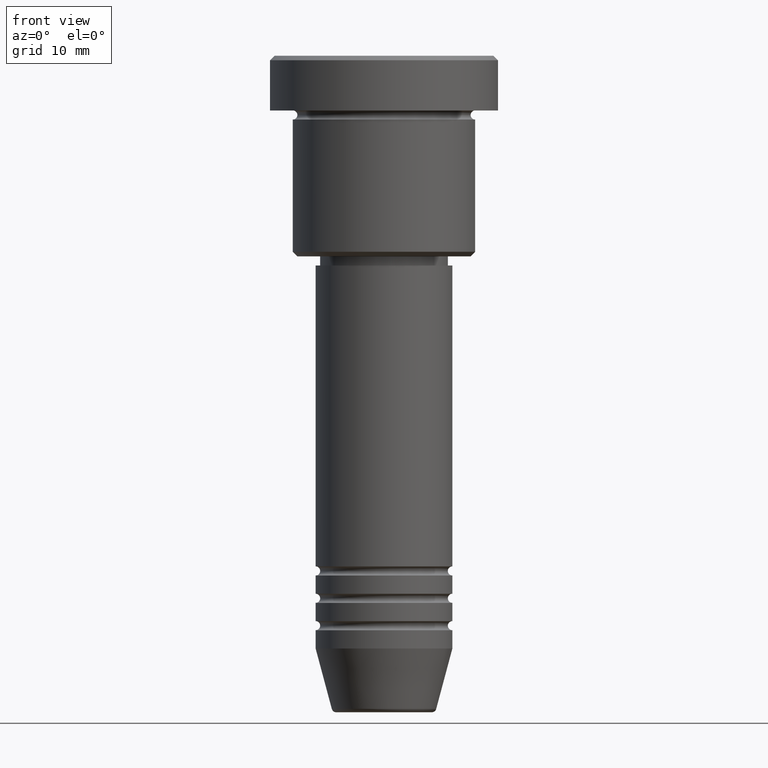
[diagram: clean part render]
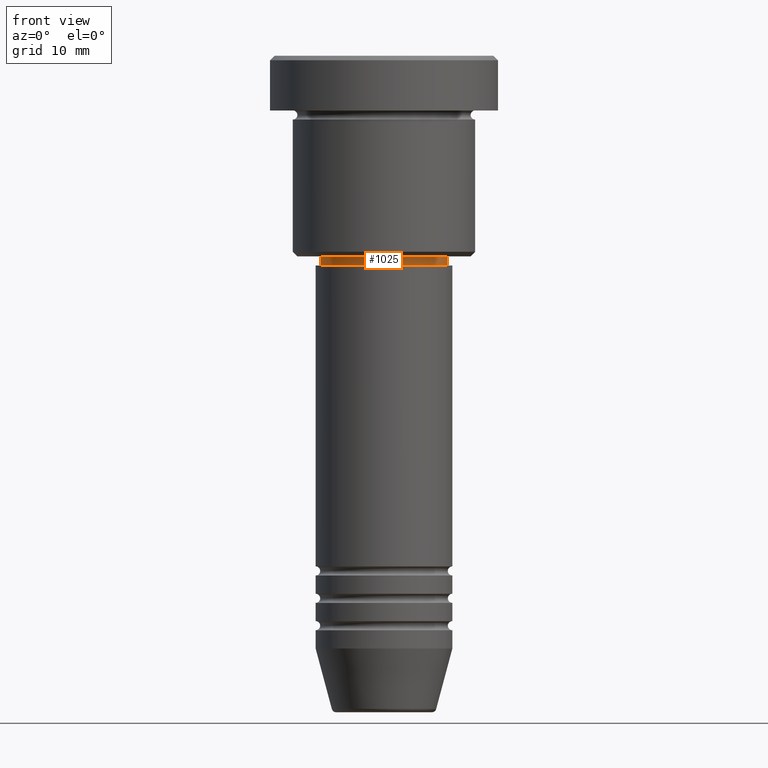
[diagram: same view with one face highlighted and labeled with its STEP entity id]
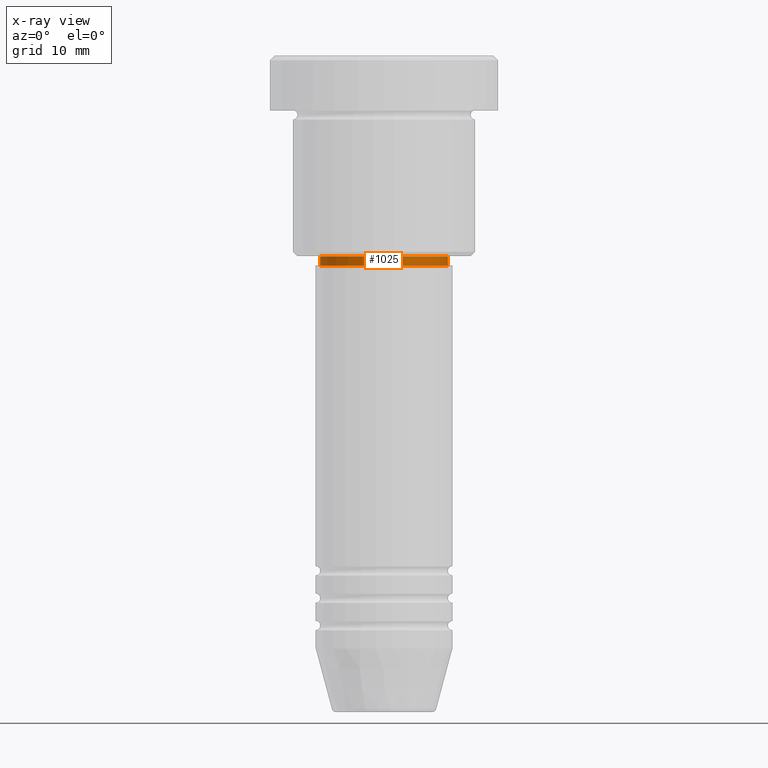
[diagram: x-ray of the same camera — body ghosted, the highlighted face saturated]
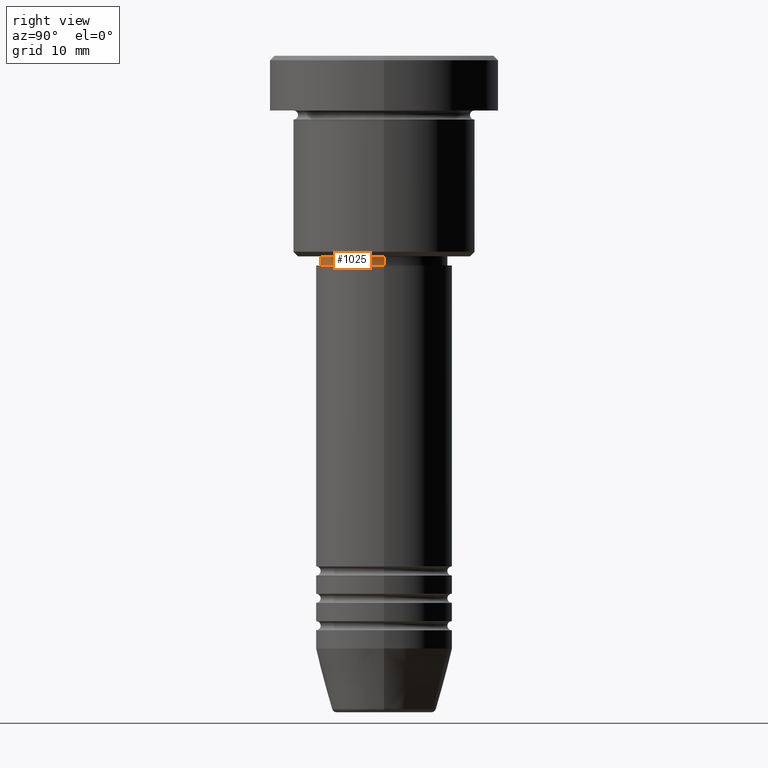
[diagram: same view with one face highlighted and labeled with its STEP entity id]
A machine part, front view. The second image highlights one B-rep face of the part: STEP entity #1025.
The next image is the same camera in x-ray: the body ghosted, the highlighted face saturated — about 0% of this face is hidden behind the body in this view.
A second angle (right view) of the same face is appended — the face is thin or edge-on in the first view.
In plain terms, the highlighted cylindrical surface (partial cylindrical patch) has radius 7 mm, axis along (-0, -0, 1).
Its self-contained STEP definition (entity closure, byte-faithful):
#43 = LINE ( 'NONE', #958, #888 ) ;
#78 = CIRCLE ( 'NONE', #1056, 6.999999999999999112 ) ;
#115 = AXIS2_PLACEMENT_3D ( 'NONE', #718, #1116, #195 ) ;
#122 = VERTEX_POINT ( 'NONE', #391 ) ;
#123 = CARTESIAN_POINT ( 'NONE',  ( 0.000000000000000000, 0.000000000000000000, 0.000000000000000000 ) ) ;
#195 = DIRECTION ( 'NONE',  ( 1.000000000000000000, 0.000000000000000000, 0.000000000000000000 ) ) ;
#199 = EDGE_LOOP ( 'NONE', ( #417, #220, #909, #1143 ) ) ;
#217 = CYLINDRICAL_SURFACE ( 'NONE', #321, 6.999999999999999112 ) ;
#220 = ORIENTED_EDGE ( 'NONE', *, *, #365, .T. ) ;
#321 = AXIS2_PLACEMENT_3D ( 'NONE', #123, #1139, #1144 ) ;
#352 = EDGE_CURVE ( 'NONE', #493, #770, #78, .T. ) ;
#365 = EDGE_CURVE ( 'NONE', #442, #122, #553, .T. ) ;
#384 = DIRECTION ( 'NONE',  ( -0.000000000000000000, -0.000000000000000000, 1.000000000000000000 ) ) ;
#391 = CARTESIAN_POINT ( 'NONE',  ( 6.999999999999999112, 0.000000000000000000, -23.00000000000000000 ) ) ;
#417 = ORIENTED_EDGE ( 'NONE', *, *, #1153, .F. ) ;
#442 = VERTEX_POINT ( 'NONE', #1169 ) ;
#493 = VERTEX_POINT ( 'NONE', #1037 ) ;
#519 = DIRECTION ( 'NONE',  ( -0.000000000000000000, -0.000000000000000000, 1.000000000000000000 ) ) ;
#553 = CIRCLE ( 'NONE', #115, 6.999999999999999112 ) ;
#563 = EDGE_CURVE ( 'NONE', #122, #770, #43, .T. ) ;
#582 = DIRECTION ( 'NONE',  ( -0.000000000000000000, -0.000000000000000000, 1.000000000000000000 ) ) ;
#666 = FACE_OUTER_BOUND ( 'NONE', #199, .T. ) ;
#718 = CARTESIAN_POINT ( 'NONE',  ( 0.000000000000000000, 0.000000000000000000, -23.00000000000000000 ) ) ;
#745 = DIRECTION ( 'NONE',  ( 1.000000000000000000, 0.000000000000000000, 0.000000000000000000 ) ) ;
#770 = VERTEX_POINT ( 'NONE', #904 ) ;
#888 = VECTOR ( 'NONE', #582, 1000.000000000000000 ) ;
#899 = LINE ( 'NONE', #1065, #971 ) ;
#904 = CARTESIAN_POINT ( 'NONE',  ( 6.999999999999999112, 0.000000000000000000, -22.00000000000000000 ) ) ;
#909 = ORIENTED_EDGE ( 'NONE', *, *, #563, .T. ) ;
#958 = CARTESIAN_POINT ( 'NONE',  ( 6.999999999999999112, 0.000000000000000000, 0.000000000000000000 ) ) ;
#971 = VECTOR ( 'NONE', #519, 1000.000000000000000 ) ;
#1011 = CARTESIAN_POINT ( 'NONE',  ( 0.000000000000000000, 0.000000000000000000, -22.00000000000000000 ) ) ;
#1025 = ADVANCED_FACE ( 'NONE', ( #666 ), #217, .T. ) ;
#1037 = CARTESIAN_POINT ( 'NONE',  ( -6.999999999999999112, 8.572527594031472204E-16, -22.00000000000000000 ) ) ;
#1056 = AXIS2_PLACEMENT_3D ( 'NONE', #1011, #384, #745 ) ;
#1065 = CARTESIAN_POINT ( 'NONE',  ( -6.999999999999999112, 8.572527594031472204E-16, 0.000000000000000000 ) ) ;
#1116 = DIRECTION ( 'NONE',  ( -0.000000000000000000, -0.000000000000000000, 1.000000000000000000 ) ) ;
#1139 = DIRECTION ( 'NONE',  ( -0.000000000000000000, -0.000000000000000000, 1.000000000000000000 ) ) ;
#1143 = ORIENTED_EDGE ( 'NONE', *, *, #352, .F. ) ;
#1144 = DIRECTION ( 'NONE',  ( 1.000000000000000000, 0.000000000000000000, 0.000000000000000000 ) ) ;
#1153 = EDGE_CURVE ( 'NONE', #442, #493, #899, .T. ) ;
#1169 = CARTESIAN_POINT ( 'NONE',  ( -6.999999999999999112, 8.572527594031472204E-16, -23.00000000000000000 ) ) ;